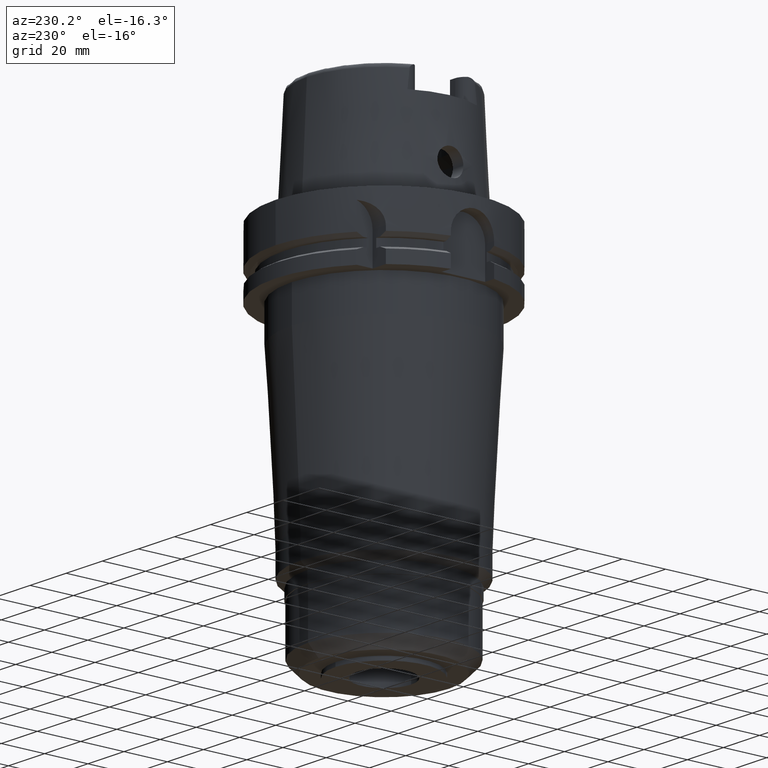
[diagram: clean part render]
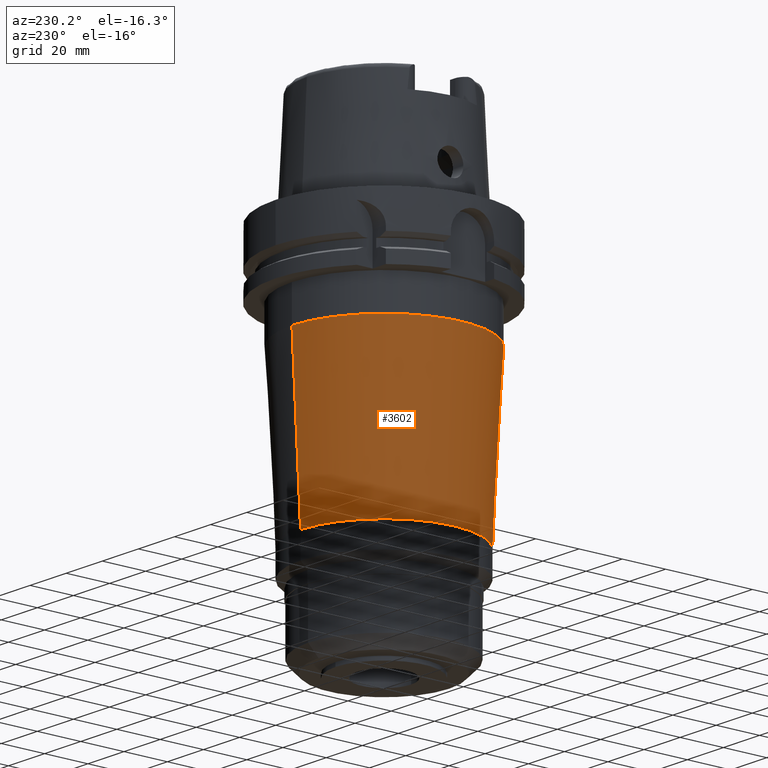
[diagram: same view with one face highlighted and labeled with its STEP entity id]
A machine part, auxiliary view. The second image highlights one B-rep face of the part: STEP entity #3602.
In plain terms, the highlighted conical surface has half-angle 3.065 deg.
Its self-contained STEP definition (entity closure, byte-faithful):
#1241=CARTESIAN_POINT('',(0.E0,0.E0,-4.5E1));
#1242=DIRECTION('',(0.E0,0.E0,1.E0));
#1243=DIRECTION('',(0.E0,1.E0,0.E0));
#1244=AXIS2_PLACEMENT_3D('',#1241,#1242,#1243);
#1249=DIRECTION('',(0.E0,5.347091872169E-2,-9.985694071275E-1));
#1250=VECTOR('',#1249,7.480701838731E1);
#1251=CARTESIAN_POINT('',(0.E0,-4.25E1,-4.5E1));
#1252=LINE('',#1251,#1250);
#1256=CARTESIAN_POINT('',(0.E0,0.E0,-1.197E2));
#1257=DIRECTION('',(0.E0,0.E0,-1.E0));
#1258=DIRECTION('',(0.E0,-1.E0,0.E0));
#1259=AXIS2_PLACEMENT_3D('',#1256,#1257,#1258);
#1264=DIRECTION('',(0.E0,-5.347091872169E-2,-9.985694071275E-1));
#1265=VECTOR('',#1264,7.480701838731E1);
#1266=CARTESIAN_POINT('',(0.E0,4.25E1,-4.5E1));
#1267=LINE('',#1266,#1265);
#2505=CARTESIAN_POINT('',(0.E0,3.85E1,-1.197E2));
#2506=VERTEX_POINT('',#2505);
#2507=CARTESIAN_POINT('',(0.E0,-3.85E1,-1.197E2));
#2508=VERTEX_POINT('',#2507);
#2509=CARTESIAN_POINT('',(0.E0,4.25E1,-4.5E1));
#2510=VERTEX_POINT('',#2509);
#2511=CARTESIAN_POINT('',(0.E0,-4.25E1,-4.5E1));
#2512=VERTEX_POINT('',#2511);
#3588=CARTESIAN_POINT('',(0.E0,0.E0,-8.235E1));
#3589=DIRECTION('',(0.E0,0.E0,1.E0));
#3590=DIRECTION('',(0.E0,1.E0,0.E0));
#3591=AXIS2_PLACEMENT_3D('',#3588,#3589,#3590);
#3592=CONICAL_SURFACE('',#3591,4.05E1,3.065119755047E0);
#3594=ORIENTED_EDGE('',*,*,#3593,.F.);
#3596=ORIENTED_EDGE('',*,*,#3595,.T.);
#3598=ORIENTED_EDGE('',*,*,#3597,.T.);
#3599=ORIENTED_EDGE('',*,*,#3581,.T.);
#3600=EDGE_LOOP('',(#3594,#3596,#3598,#3599));
#3601=FACE_OUTER_BOUND('',#3600,.F.);
#1245=CIRCLE('',#1244,4.25E1);
#1260=CIRCLE('',#1259,3.85E1);
#3581=EDGE_CURVE('',#2508,#2506,#1260,.T.);
#3593=EDGE_CURVE('',#2510,#2506,#1267,.T.);
#3595=EDGE_CURVE('',#2510,#2512,#1245,.T.);
#3597=EDGE_CURVE('',#2512,#2508,#1252,.T.);
#3602=ADVANCED_FACE('',(#3601),#3592,.T.);